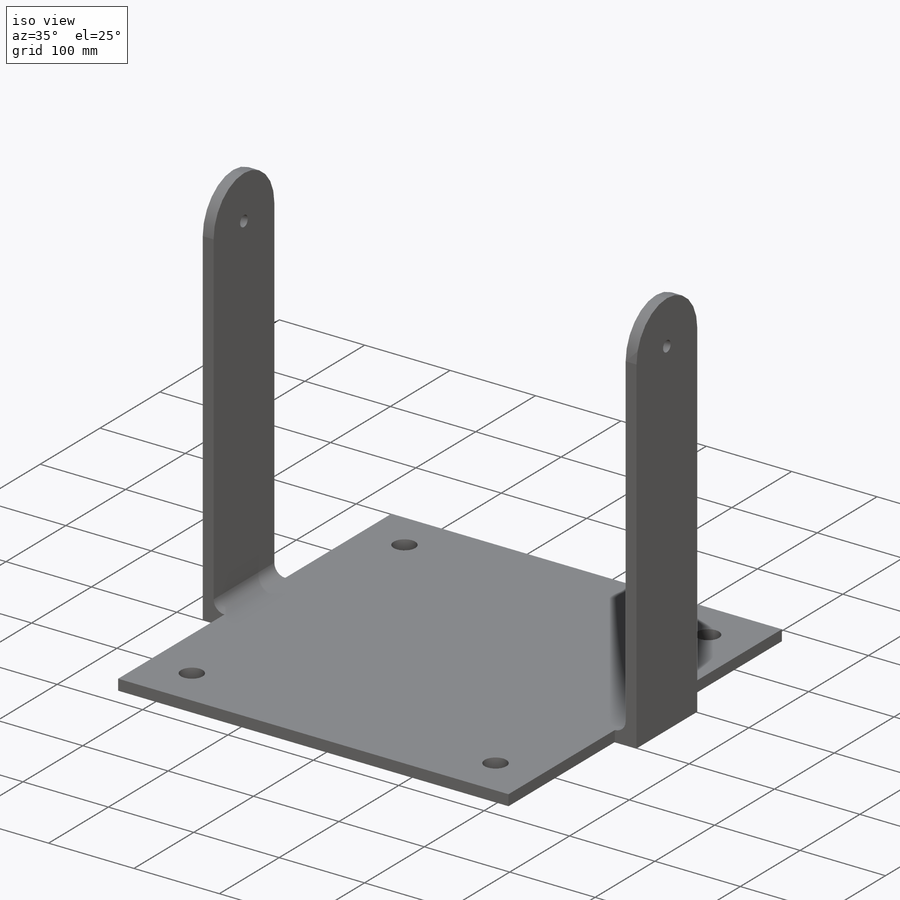
[diagram: iso view]
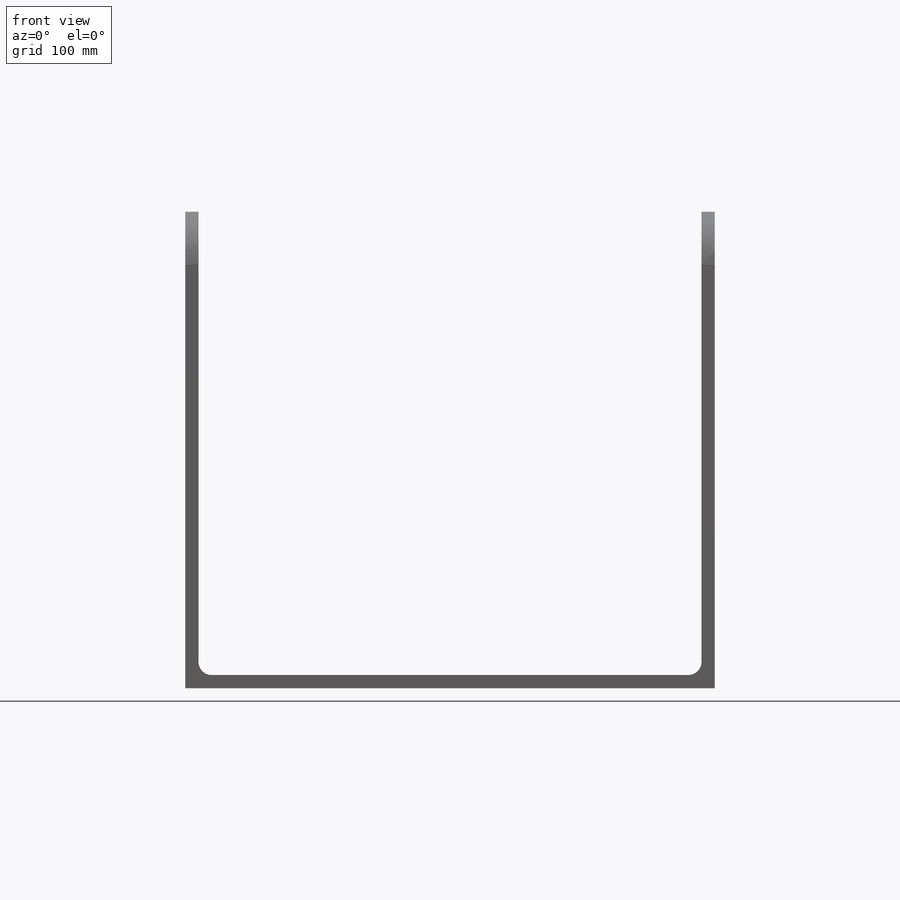
[diagram: front view]
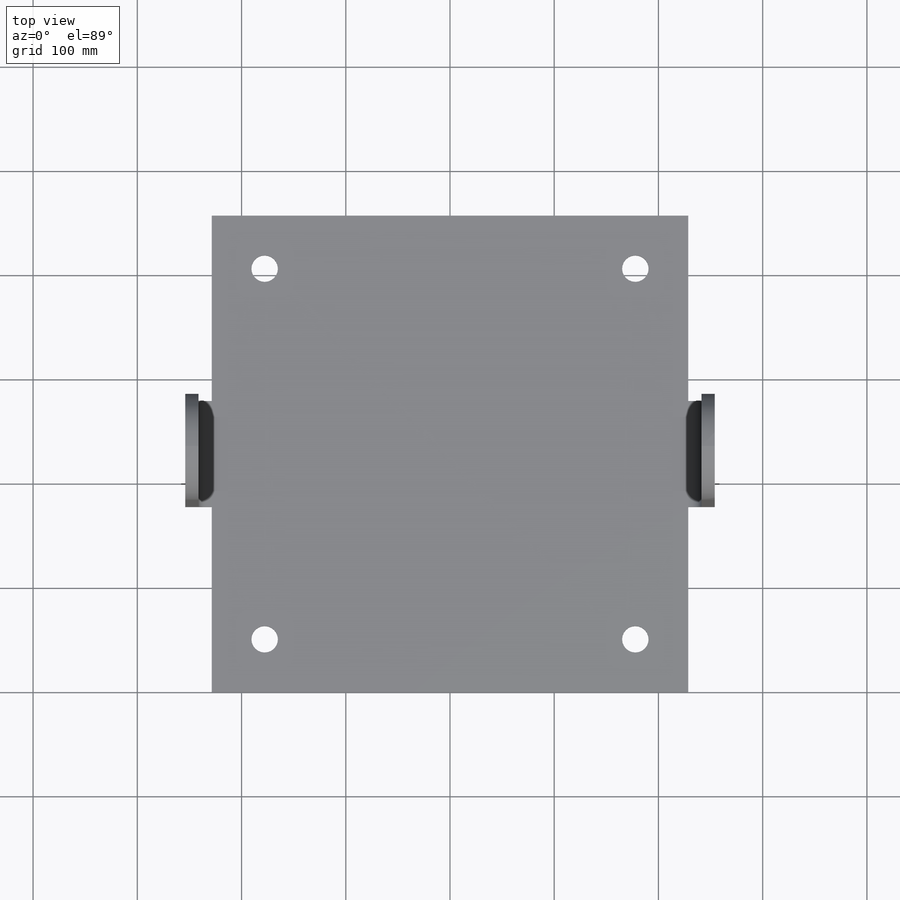
[diagram: top view]
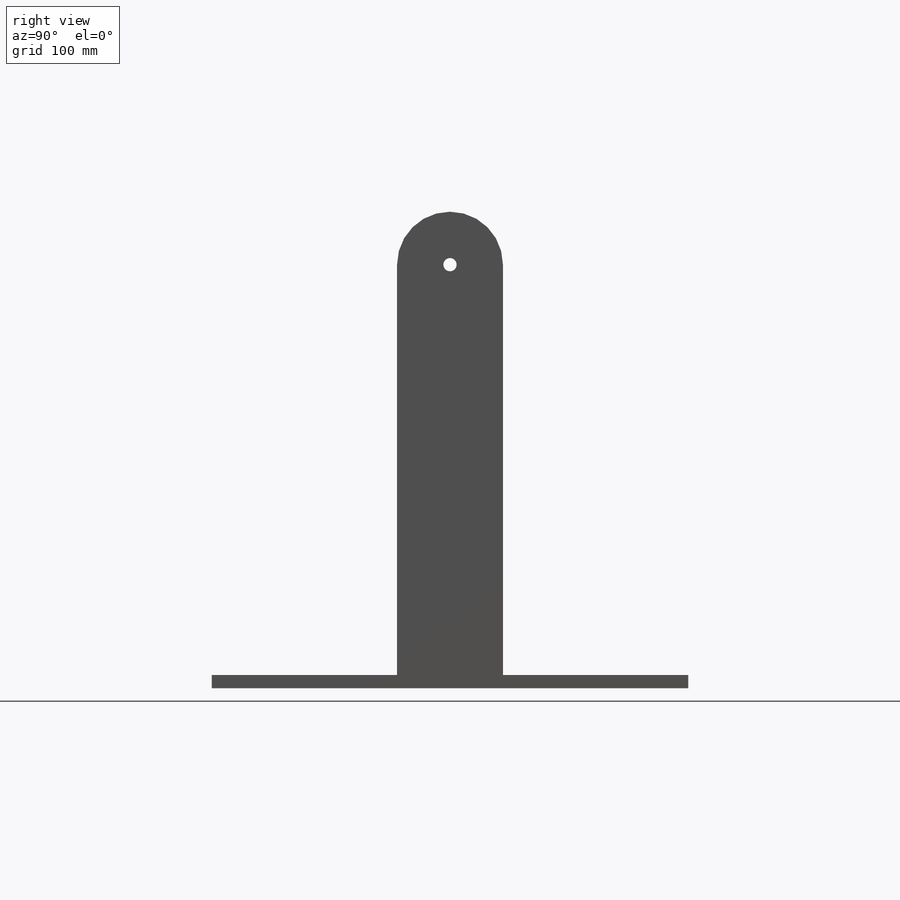
[diagram: right view]
SOLIDWORKS PART (.sldprt)
format: sldprt  version: not decoded by parser v0  size: 251,392 bytes
history: native  units: mm
features: sketch x6, fillet x5, extrude x3, cut_extrude x3, material x1, mirror x1 (+11 scaffold rows collapsed)
feature tree (30):
  scaffold x11  (default folders/planes/origin — collapsed)
  material  "6061 Alloy"
  sketch  "Sketch1"  dims[D1=228.6mm D2=457.2mm]
  extrude  "Boss-Extrude1"  Depth=12.7mm
  sketch  "Sketch2"  dims[D1=12.7mm D2=101.6mm D3=50.8mm]
  extrude  "Boss-Extrude2"  Depth=12.7mm
  sketch  "Sketch3"  dims[D1=101.6mm D2=457.2mm]
  extrude  "Boss-Extrude3"  Depth=12.7mm
  fillet  "Fillet1"  Radius=12.7mm
  mirror  "Mirror1"
  sketch  "Sketch4"  dims[D1=12.7mm D2=50.8mm D3=50.8mm]
  cut_extrude  "Cut-Extrude1"  [1 undecoded]
  fillet  "Fillet2"  Radius=50.8mm
  fillet  "Fillet3"  Radius=50.8mm
  fillet  "Fillet4"  Radius=50.8mm
  fillet  "Fillet5"  Radius=50.8mm
  sketch  "Sketch5"  dims[D1=25.4mm D2=50.8mm D3=50.8mm]
  cut_extrude  "Cut-Extrude2"  [1 undecoded]
  sketch  "Sketch6"  dims[D1=25.4mm D2=25.4mm D3=25.4mm D4=50.8mm D5=50.8mm D6=50.8mm D7=50.8mm D8=50.8mm D9=50.8mm]
  cut_extrude  "Cut-Extrude3"  [1 undecoded]
decode coverage: 14 of 18 modeling features carry decoded parameters
note: 3 parameter values undecoded
summary: no parameter record found for 3 features
note: suppression state not decoded; provenance and decode notes live in map.json
